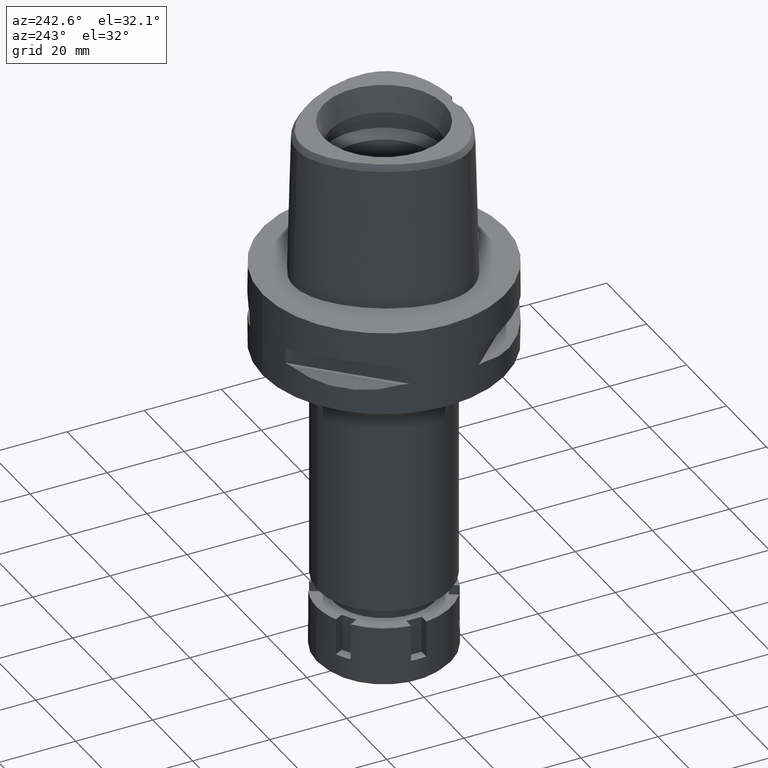
[diagram: clean part render]
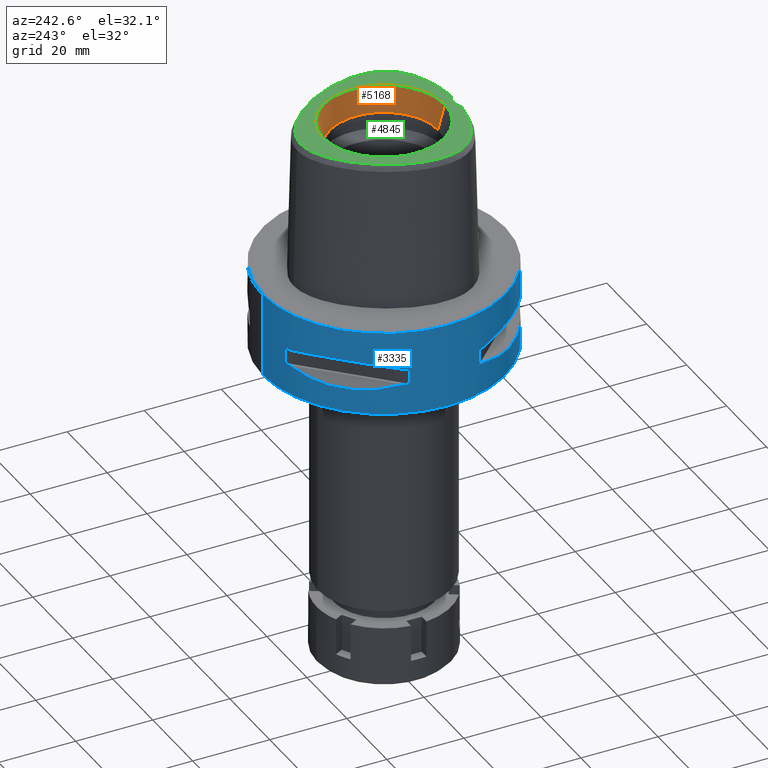
[diagram: same view with three faces highlighted in distinct colors, each labeled with its STEP entity id]
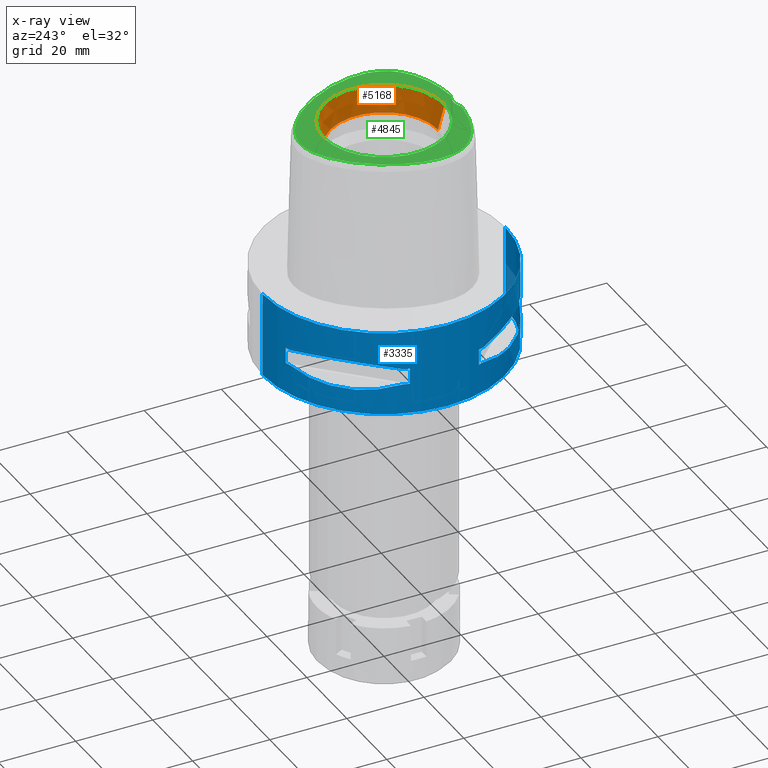
[diagram: x-ray of the same camera — body ghosted, the three highlighted faces saturated]
A machine part, auxiliary view with three faces highlighted in distinct colors.
The next image is the same camera in x-ray (body ghosted, the three faces saturated) — at least one of them is partly hidden behind the body in this view.
Their STEP definitions:

[orange] entity #5168 — the highlighted conical surface has half-angle 15 deg.
#83 = ORIENTED_EDGE ( 'NONE', *, *, #2092, .T. ) ;
#112 = DIRECTION ( 'NONE',  ( 0.0000000000000000000, -0.2588190451025869088, 0.9659258262890505486 ) ) ;
#210 = CARTESIAN_POINT ( 'NONE',  ( 0.0000000000000000000, 0.0000000000000000000, 34.79999999999999716 ) ) ;
#348 = VERTEX_POINT ( 'NONE', #3862 ) ;
#384 = CARTESIAN_POINT ( 'NONE',  ( 0.0000000000000000000, 14.00000000000000000, 31.60000000000000142 ) ) ;
#582 = EDGE_CURVE ( 'NONE', #2557, #4415, #711, .T. ) ;
#587 = DIRECTION ( 'NONE',  ( 0.0000000000000000000, 0.2588190451025869088, 0.9659258262890505486 ) ) ;
#711 = LINE ( 'NONE', #5382, #3611 ) ;
#737 = EDGE_CURVE ( 'NONE', #5273, #348, #4883, .T. ) ;
#802 = DIRECTION ( 'NONE',  ( 0.0000000000000000000, -1.000000000000000000, 0.0000000000000000000 ) ) ;
#1127 = ORIENTED_EDGE ( 'NONE', *, *, #582, .F. ) ;
#1608 = EDGE_CURVE ( 'NONE', #5273, #2557, #3349, .T. ) ;
#1768 = AXIS2_PLACEMENT_3D ( 'NONE', #2482, #3332, #802 ) ;
#1899 = FACE_OUTER_BOUND ( 'NONE', #2621, .T. ) ;
#2010 = ORIENTED_EDGE ( 'NONE', *, *, #1608, .F. ) ;
#2092 = EDGE_CURVE ( 'NONE', #348, #4415, #5353, .T. ) ;
#2170 = VECTOR ( 'NONE', #112, 1000.000000000000000 ) ;
#2482 = CARTESIAN_POINT ( 'NONE',  ( 0.0000000000000000000, 0.0000000000000000000, 38.00000000000000000 ) ) ;
#2490 = DIRECTION ( 'NONE',  ( 0.0000000000000000000, 0.0000000000000000000, 1.000000000000000000 ) ) ;
#2557 = VERTEX_POINT ( 'NONE', #384 ) ;
#2621 = EDGE_LOOP ( 'NONE', ( #1127, #2010, #4913, #83 ) ) ;
#2742 = DIRECTION ( 'NONE',  ( 0.0000000000000000000, 1.000000000000000000, 0.0000000000000000000 ) ) ;
#3161 = CARTESIAN_POINT ( 'NONE',  ( 0.0000000000000000000, -14.00000000000000000, 31.60000000000000142 ) ) ;
#3309 = DIRECTION ( 'NONE',  ( 0.0000000000000000000, 0.0000000000000000000, 1.000000000000000000 ) ) ;
#3332 = DIRECTION ( 'NONE',  ( 0.0000000000000000000, 0.0000000000000000000, 1.000000000000000000 ) ) ;
#3349 = CIRCLE ( 'NONE', #5037, 14.00000000000000000 ) ;
#3401 = AXIS2_PLACEMENT_3D ( 'NONE', #210, #3309, #2742 ) ;
#3611 = VECTOR ( 'NONE', #587, 1000.000000000000000 ) ;
#3862 = CARTESIAN_POINT ( 'NONE',  ( 0.0000000000000000000, -15.71487483155999776, 38.00000000000000000 ) ) ;
#4198 = CARTESIAN_POINT ( 'NONE',  ( 0.0000000000000000000, 15.71487483155999776, 38.00000000000000000 ) ) ;
#4415 = VERTEX_POINT ( 'NONE', #4198 ) ;
#4450 = CARTESIAN_POINT ( 'NONE',  ( 0.0000000000000000000, -14.00000000000000000, 31.60000000000000142 ) ) ;
#4572 = DIRECTION ( 'NONE',  ( 0.0000000000000000000, -1.000000000000000000, 0.0000000000000000000 ) ) ;
#4883 = LINE ( 'NONE', #3161, #2170 ) ;
#4913 = ORIENTED_EDGE ( 'NONE', *, *, #737, .T. ) ;
#4984 = CARTESIAN_POINT ( 'NONE',  ( 0.0000000000000000000, 0.0000000000000000000, 31.60000000000000142 ) ) ;
#5037 = AXIS2_PLACEMENT_3D ( 'NONE', #4984, #2490, #4572 ) ;
#5087 = CONICAL_SURFACE ( 'NONE', #3401, 14.85743741577999977, 0.2617993877991000029 ) ;
#5168 = ADVANCED_FACE ( 'NONE', ( #1899 ), #5087, .F. ) ;
#5273 = VERTEX_POINT ( 'NONE', #4450 ) ;
#5353 = CIRCLE ( 'NONE', #1768, 15.71487483155999776 ) ;
#5382 = CARTESIAN_POINT ( 'NONE',  ( 0.0000000000000000000, 14.00000000000000000, 31.60000000000000142 ) ) ;

[blue] entity #3335 — the highlighted cylindrical surface (partial cylindrical patch) has radius 31.5 mm, axis along (0, 0, -1).
#13 = ORIENTED_EDGE ( 'NONE', *, *, #4874, .F. ) ;
#24 = CARTESIAN_POINT ( 'NONE',  ( 0.0000000000000000000, 31.50000000000000000, 0.0000000000000000000 ) ) ;
#27 = CARTESIAN_POINT ( 'NONE',  ( -29.71690375017999841, 10.44775724750000023, -9.949999999998999201 ) ) ;
#46 = CIRCLE ( 'NONE', #3494, 31.50000000000000711 ) ;
#51 = CIRCLE ( 'NONE', #3237, 31.50000000000000000 ) ;
#55 = CARTESIAN_POINT ( 'NONE',  ( -30.19251670572000279, -8.981198972017999438, -14.05000000000000071 ) ) ;
#62 = VERTEX_POINT ( 'NONE', #1801 ) ;
#67 = EDGE_CURVE ( 'NONE', #1742, #1547, #2147, .T. ) ;
#99 = DIRECTION ( 'NONE',  ( -0.3316748332540863653, 0.9433937698468619626, 0.0000000000000000000 ) ) ;
#108 = CARTESIAN_POINT ( 'NONE',  ( -30.19251670572000279, 8.981198972019999616, -14.05000000000000071 ) ) ;
#117 = CARTESIAN_POINT ( 'NONE',  ( -25.43927894891607622, 18.59229662064853983, -15.62866126334269623 ) ) ;
#127 = AXIS2_PLACEMENT_3D ( 'NONE', #2538, #1652, #1627 ) ;
#140 = DIRECTION ( 'NONE',  ( -0.9584925938322735872, -0.2851174276831918153, 0.0000000000000000000 ) ) ;
#146 = CARTESIAN_POINT ( 'NONE',  ( -29.71690375017999841, 10.44775724750000023, -14.05000000000000071 ) ) ;
#233 = CARTESIAN_POINT ( 'NONE',  ( -16.89910283486545950, 26.58330558444438907, -15.40446471307224030 ) ) ;
#346 = FACE_BOUND ( 'NONE', #1789, .T. ) ;
#391 = CARTESIAN_POINT ( 'NONE',  ( -17.05047092244293694, -26.48642424310493837, -15.42670883407686588 ) ) ;
#426 = CARTESIAN_POINT ( 'NONE',  ( -10.44775724750000023, -29.71690375017999841, -9.949999999998999201 ) ) ;
#431 = CARTESIAN_POINT ( 'NONE',  ( -8.981198972017999438, -30.19251670572000279, -14.05000000000000071 ) ) ;
#453 = CARTESIAN_POINT ( 'NONE',  ( -10.44775724750000023, -29.71690375017999841, -14.05000000000000071 ) ) ;
#489 = CARTESIAN_POINT ( 'NONE',  ( -29.71690375017999841, -10.44775724750000023, -14.05000000000000071 ) ) ;
#517 = B_SPLINE_CURVE_WITH_KNOTS ( 'NONE', 3,
 ( #3252, #4950, #4418, #1096, #4009, #2827, #4532, #1461, #4444, #233, #4973, #1974, #3279, #546, #117, #4864, #2737, #3588, #5276, #5309, #1432, #1010, #570, #146 ),
 .UNSPECIFIED., .F., .F.,
 ( 4, 1, 1, 1, 1, 1, 2, 2, 2, 1, 1, 1, 1, 1, 2, 2, 4 ),
 ( 0.0000000000000000000, 0.1249999999999950040, 0.1874999999999924505, 0.2187499999999911737, 0.2343749999999902855, 0.2421874999999899802, 0.2460937499999900080, 0.2499999999999900080, 0.4999999999999917843, 0.6249999999999925615, 0.6874999999999925615, 0.7187499999999924505, 0.7343749999999926725, 0.7421874999999927836, 0.7460937499999928946, 0.7499999999999931166, 1.000000000000000000 ),
 .UNSPECIFIED. ) ;
#531 = DIRECTION ( 'NONE',  ( 0.0000000000000000000, 0.0000000000000000000, -1.000000000000000000 ) ) ;
#546 = CARTESIAN_POINT ( 'NONE',  ( -24.23018836745279714, 20.18579225685798306, -15.78559396978850415 ) ) ;
#565 = CARTESIAN_POINT ( 'NONE',  ( 0.0000000000000000000, 1.284042168905999827E-14, -9.950000000000001066 ) ) ;
#570 = CARTESIAN_POINT ( 'NONE',  ( -28.91382665368626093, 12.73197616788979047, -14.65467361754097197 ) ) ;
#638 = ORIENTED_EDGE ( 'NONE', *, *, #2160, .T. ) ;
#685 = VECTOR ( 'NONE', #2869, 1000.000000000000000 ) ;
#693 = DIRECTION ( 'NONE',  ( 0.0000000000000000000, 0.0000000000000000000, -1.000000000000000000 ) ) ;
#707 = CARTESIAN_POINT ( 'NONE',  ( -30.19251670572000279, 8.981198972017999438, -9.950000000000001066 ) ) ;
#801 = EDGE_CURVE ( 'NONE', #838, #5399, #3345, .T. ) ;
#838 = VERTEX_POINT ( 'NONE', #5436 ) ;
#864 = CARTESIAN_POINT ( 'NONE',  ( 0.0000000000000000000, 31.50000000000000000, 0.0000000000000000000 ) ) ;
#885 = CARTESIAN_POINT ( 'NONE',  ( -23.90617837150508507, -20.64154884324739214, -8.160627831297871282 ) ) ;
#923 = CARTESIAN_POINT ( 'NONE',  ( 0.0000000000000000000, -31.50000000000000000, 0.0000000000000000000 ) ) ;
#940 = EDGE_CURVE ( 'NONE', #5399, #2936, #4465, .T. ) ;
#975 = CARTESIAN_POINT ( 'NONE',  ( -8.981198972017999438, -30.19251670572000279, -9.950000000000001066 ) ) ;
#1008 = DIRECTION ( 'NONE',  ( -0.2851174276831918153, -0.9584925938322735872, 0.0000000000000000000 ) ) ;
#1010 = CARTESIAN_POINT ( 'NONE',  ( -27.86285265926284893, 14.89252659058025685, -15.10765629752004813 ) ) ;
#1056 = AXIS2_PLACEMENT_3D ( 'NONE', #2885, #693, #4148 ) ;
#1090 = DIRECTION ( 'NONE',  ( 0.0000000000000000000, 1.000000000000000000, 0.0000000000000000000 ) ) ;
#1096 = CARTESIAN_POINT ( 'NONE',  ( -15.11986997308662595, 27.64634172018752523, -15.11207862403231239 ) ) ;
#1103 = VERTEX_POINT ( 'NONE', #108 ) ;
#1124 = CARTESIAN_POINT ( 'NONE',  ( -20.64154884331406237, 23.90617837143844682, -8.160627831321418668 ) ) ;
#1125 = DIRECTION ( 'NONE',  ( 0.0000000000000000000, -1.000000000000000000, 0.0000000000000000000 ) ) ;
#1179 = CARTESIAN_POINT ( 'NONE',  ( -18.59229662065495958, -25.43927894891979946, -15.62866126334684580 ) ) ;
#1182 = CARTESIAN_POINT ( 'NONE',  ( 0.0000000000000000000, 1.284042168905999827E-14, 4.850000000000000533 ) ) ;
#1205 = CARTESIAN_POINT ( 'NONE',  ( -27.88214534467230976, -14.84422749205291581, -8.906206096480271839 ) ) ;
#1209 = ORIENTED_EDGE ( 'NONE', *, *, #3507, .F. ) ;
#1216 = ORIENTED_EDGE ( 'NONE', *, *, #940, .T. ) ;
#1234 = CARTESIAN_POINT ( 'NONE',  ( -29.31542262584746794, -11.58970337494326941, -14.35229357166913999 ) ) ;
#1326 = CIRCLE ( 'NONE', #3684, 31.50000000000000711 ) ;
#1359 = DIRECTION ( 'NONE',  ( 0.0000000000000000000, 0.0000000000000000000, -1.000000000000000000 ) ) ;
#1430 = CARTESIAN_POINT ( 'NONE',  ( 0.0000000000000000000, 1.284042168905999827E-14, -14.05000000000000071 ) ) ;
#1432 = CARTESIAN_POINT ( 'NONE',  ( -26.54368690921649687, 16.96123479564916892, -15.41365572341313239 ) ) ;
#1461 = CARTESIAN_POINT ( 'NONE',  ( -16.80193241490443157, 26.64486562695815053, -15.38992683735661515 ) ) ;
#1547 = VERTEX_POINT ( 'NONE', #3824 ) ;
#1560 = CARTESIAN_POINT ( 'NONE',  ( -30.19251670572000279, 8.981198972017999438, -14.05000000000000071 ) ) ;
#1571 = CARTESIAN_POINT ( 'NONE',  ( -26.64486562695783789, -16.80193241490531975, -15.38992683735687272 ) ) ;
#1577 = ORIENTED_EDGE ( 'NONE', *, *, #3372, .T. ) ;
#1600 = CARTESIAN_POINT ( 'NONE',  ( -23.89673728055121416, -20.65093790435243193, -15.83935804901394739 ) ) ;
#1613 = ORIENTED_EDGE ( 'NONE', *, *, #3282, .F. ) ;
#1627 = DIRECTION ( 'NONE',  ( -0.9433937698468619626, -0.3316748332540863653, 0.0000000000000000000 ) ) ;
#1652 = DIRECTION ( 'NONE',  ( 0.0000000000000000000, 0.0000000000000000000, -1.000000000000000000 ) ) ;
#1677 = CARTESIAN_POINT ( 'NONE',  ( -14.89252659053665440, -27.86285265927818600, -15.10765629750852135 ) ) ;
#1706 = CARTESIAN_POINT ( 'NONE',  ( -17.76952662672209371, -26.01217882834868433, -15.52665221626257264 ) ) ;
#1717 = DIRECTION ( 'NONE',  ( 0.0000000000000000000, 0.0000000000000000000, -1.000000000000000000 ) ) ;
#1725 = ORIENTED_EDGE ( 'NONE', *, *, #2034, .T. ) ;
#1742 = VERTEX_POINT ( 'NONE', #923 ) ;
#1758 = VERTEX_POINT ( 'NONE', #489 ) ;
#1771 = ORIENTED_EDGE ( 'NONE', *, *, #4562, .F. ) ;
#1780 = VECTOR ( 'NONE', #4311, 1000.000000000000000 ) ;
#1789 = EDGE_LOOP ( 'NONE', ( #1725, #13, #4025, #1613, #2970, #1209, #4058, #638 ) ) ;
#1801 = CARTESIAN_POINT ( 'NONE',  ( -8.981198972019999616, -30.19251670572000279, -14.05000000000000071 ) ) ;
#1813 = DIRECTION ( 'NONE',  ( -0.9584925938322735872, 0.2851174276831918153, 0.0000000000000000000 ) ) ;
#1827 = ORIENTED_EDGE ( 'NONE', *, *, #2990, .T. ) ;
#1831 = DIRECTION ( 'NONE',  ( 0.0000000000000000000, 0.0000000000000000000, 1.000000000000000000 ) ) ;
#1844 = B_SPLINE_CURVE_WITH_KNOTS ( 'NONE', 3,
 ( #5076, #1234, #2001, #2481, #5413, #3299, #2957, #1571, #4994, #2029, #3753, #1600, #3331, #5025, #1179, #1706, #3945, #2673, #391, #2647, #3921, #1677, #3463, #453 ),
 .UNSPECIFIED., .F., .F.,
 ( 4, 1, 1, 1, 1, 1, 2, 2, 2, 1, 1, 1, 1, 1, 2, 2, 4 ),
 ( 0.0000000000000000000, 0.1250000000000055511, 0.1875000000000083267, 0.2187500000000097977, 0.2343750000000106304, 0.2421875000000108247, 0.2460937500000108524, 0.2500000000000108802, 0.5000000000000087708, 0.6250000000000075495, 0.6875000000000071054, 0.7187500000000067724, 0.7343750000000066613, 0.7421875000000065503, 0.7460937500000062172, 0.7500000000000059952, 1.000000000000000000 ),
 .UNSPECIFIED. ) ;
#1857 = VERTEX_POINT ( 'NONE', #1921 ) ;
#1863 = CIRCLE ( 'NONE', #127, 31.50000000000000711 ) ;
#1894 = ORIENTED_EDGE ( 'NONE', *, *, #67, .F. ) ;
#1921 = CARTESIAN_POINT ( 'NONE',  ( -10.44775724750000023, 29.71690375017999841, -9.949999999998999201 ) ) ;
#1974 = CARTESIAN_POINT ( 'NONE',  ( -20.65093790435807364, 23.89673728056094859, -15.83935804902020550 ) ) ;
#2001 = CARTESIAN_POINT ( 'NONE',  ( -28.62019653468943048, -13.25636937903484203, -14.74888225541266884 ) ) ;
#2029 = CARTESIAN_POINT ( 'NONE',  ( -26.58330558444411906, -16.89910283486596754, -15.40446471307235754 ) ) ;
#2034 = EDGE_CURVE ( 'NONE', #5473, #4069, #3315, .T. ) ;
#2062 = CARTESIAN_POINT ( 'NONE',  ( -14.84422749192772883, 27.88214534473898354, -8.906206096515608905 ) ) ;
#2068 = EDGE_CURVE ( 'NONE', #62, #5222, #3038, .T. ) ;
#2112 = CARTESIAN_POINT ( 'NONE',  ( 0.0000000000000000000, 1.284042168905999827E-14, -9.950000000000001066 ) ) ;
#2147 = LINE ( 'NONE', #5220, #4327 ) ;
#2150 = VERTEX_POINT ( 'NONE', #3755 ) ;
#2160 = EDGE_CURVE ( 'NONE', #1857, #5473, #2904, .T. ) ;
#2176 = ORIENTED_EDGE ( 'NONE', *, *, #4491, .T. ) ;
#2203 = DIRECTION ( 'NONE',  ( 0.0000000000000000000, 0.0000000000000000000, 1.000000000000000000 ) ) ;
#2324 = VECTOR ( 'NONE', #3668, 1000.000000000000000 ) ;
#2353 = VERTEX_POINT ( 'NONE', #5344 ) ;
#2361 = VERTEX_POINT ( 'NONE', #5380 ) ;
#2373 = EDGE_LOOP ( 'NONE', ( #2519, #1894, #1577, #5393 ) ) ;
#2481 = CARTESIAN_POINT ( 'NONE',  ( -27.64634172018421410, -15.11986997309601577, -15.11207862403482238 ) ) ;
#2519 = ORIENTED_EDGE ( 'NONE', *, *, #3793, .T. ) ;
#2538 = CARTESIAN_POINT ( 'NONE',  ( 0.0000000000000000000, 1.284042168905999827E-14, -14.05000000000000071 ) ) ;
#2625 = DIRECTION ( 'NONE',  ( 0.0000000000000000000, 0.0000000000000000000, -1.000000000000000000 ) ) ;
#2647 = CARTESIAN_POINT ( 'NONE',  ( -16.98999780422095540, -26.52527364208602734, -15.41788098766330783 ) ) ;
#2669 = EDGE_CURVE ( 'NONE', #2150, #4379, #46, .T. ) ;
#2673 = CARTESIAN_POINT ( 'NONE',  ( -17.14106442934810204, -26.42800887047570058, -15.43984550238532982 ) ) ;
#2737 = CARTESIAN_POINT ( 'NONE',  ( -26.29071741523646111, 17.35163608579689409, -15.46976201925398087 ) ) ;
#2827 = CARTESIAN_POINT ( 'NONE',  ( -16.48208282228564769, 26.84474411198887012, -15.34094883777873619 ) ) ;
#2869 = DIRECTION ( 'NONE',  ( 0.0000000000000000000, 0.0000000000000000000, 1.000000000000000000 ) ) ;
#2871 = VECTOR ( 'NONE', #2625, 1000.000000000000000 ) ;
#2885 = CARTESIAN_POINT ( 'NONE',  ( 0.0000000000000000000, 1.284042168905999827E-14, 0.0000000000000000000 ) ) ;
#2898 = LINE ( 'NONE', #1560, #685 ) ;
#2904 = B_SPLINE_CURVE_WITH_KNOTS ( 'NONE', 3,
 ( #2960, #2909, #2062, #5439, #1124, #2931, #5026, #4146, #3302, #5470 ),
 .UNSPECIFIED., .F., .F.,
 ( 4, 2, 2, 2, 4 ),
 ( 0.0000000000000000000, 0.2500000000000000000, 0.5000000000000000000, 0.7500000000000000000, 1.000000000000000000 ),
 .UNSPECIFIED. ) ;
#2909 = CARTESIAN_POINT ( 'NONE',  ( -12.70092055726457225, 28.92474506846247451, -9.353547358238497367 ) ) ;
#2929 = CARTESIAN_POINT ( 'NONE',  ( -14.84430321572443034, -27.88210502987327288, -8.906184731984685854 ) ) ;
#2931 = CARTESIAN_POINT ( 'NONE',  ( -23.90617837143843971, 20.64154884331406237, -8.160613588453221823 ) ) ;
#2936 = VERTEX_POINT ( 'NONE', #5480 ) ;
#2957 = CARTESIAN_POINT ( 'NONE',  ( -26.70521063584532229, -16.70616724745790549, -15.37546661817682292 ) ) ;
#2960 = CARTESIAN_POINT ( 'NONE',  ( -10.44775724750000023, 29.71690375017999841, -9.949999999998999201 ) ) ;
#2970 = ORIENTED_EDGE ( 'NONE', *, *, #2669, .T. ) ;
#2990 = EDGE_CURVE ( 'NONE', #2936, #3881, #1326, .T. ) ;
#3038 = CIRCLE ( 'NONE', #3488, 31.50000000000001776 ) ;
#3072 = CARTESIAN_POINT ( 'NONE',  ( -8.981198972017999438, 30.19251670572000279, -9.950000000000001066 ) ) ;
#3119 = VERTEX_POINT ( 'NONE', #864 ) ;
#3201 = CARTESIAN_POINT ( 'NONE',  ( -10.44775724750000023, -29.71690375017999841, -14.05000000000000071 ) ) ;
#3205 = EDGE_CURVE ( 'NONE', #838, #5422, #4473, .T. ) ;
#3237 = AXIS2_PLACEMENT_3D ( 'NONE', #4908, #3577, #1090 ) ;
#3252 = CARTESIAN_POINT ( 'NONE',  ( -10.44775724750000023, 29.71690375017999841, -14.05000000000000071 ) ) ;
#3263 = ORIENTED_EDGE ( 'NONE', *, *, #3205, .F. ) ;
#3279 = CARTESIAN_POINT ( 'NONE',  ( -23.08532645888017854, 21.46242677077873751, -15.83938991065184076 ) ) ;
#3282 = EDGE_CURVE ( 'NONE', #2150, #5196, #517, .T. ) ;
#3299 = CARTESIAN_POINT ( 'NONE',  ( -26.84474411198783628, -16.48208282228858224, -15.34094883777952667 ) ) ;
#3302 = CARTESIAN_POINT ( 'NONE',  ( -28.92472615203844910, 12.70097436187914575, -9.353533115194341718 ) ) ;
#3315 = CIRCLE ( 'NONE', #4295, 31.50000000000000711 ) ;
#3331 = CARTESIAN_POINT ( 'NONE',  ( -21.46242677078364025, -23.08532645888299939, -15.83938991065501867 ) ) ;
#3335 = ADVANCED_FACE ( 'NONE', ( #4230, #346, #3415 ), #5522, .T. ) ;
#3345 = CIRCLE ( 'NONE', #4686, 31.50000000000001776 ) ;
#3354 = CARTESIAN_POINT ( 'NONE',  ( -29.71690375017999841, -10.44775724750000023, -9.949999999998999201 ) ) ;
#3372 = EDGE_CURVE ( 'NONE', #1742, #3119, #4390, .T. ) ;
#3415 = FACE_BOUND ( 'NONE', #4344, .T. ) ;
#3438 = CARTESIAN_POINT ( 'NONE',  ( -12.70097436179016981, -28.92472615206970588, -9.353533115217881999 ) ) ;
#3450 = CARTESIAN_POINT ( 'NONE',  ( 0.0000000000000000000, 1.284042168905999827E-14, -9.950000000000001066 ) ) ;
#3463 = CARTESIAN_POINT ( 'NONE',  ( -12.73197616784617381, -28.91382665370159799, -14.65467361752943809 ) ) ;
#3477 = EDGE_CURVE ( 'NONE', #2361, #1857, #5364, .T. ) ;
#3488 = AXIS2_PLACEMENT_3D ( 'NONE', #1430, #4862, #1008 ) ;
#3494 = AXIS2_PLACEMENT_3D ( 'NONE', #4765, #1359, #99 ) ;
#3495 = DIRECTION ( 'NONE',  ( 0.0000000000000000000, 0.0000000000000000000, -1.000000000000000000 ) ) ;
#3507 = EDGE_CURVE ( 'NONE', #2361, #4379, #4721, .T. ) ;
#3559 = DIRECTION ( 'NONE',  ( -0.9433937698468619626, 0.3316748332540863653, 0.0000000000000000000 ) ) ;
#3562 = EDGE_CURVE ( 'NONE', #62, #3881, #4779, .T. ) ;
#3577 = DIRECTION ( 'NONE',  ( 0.0000000000000000000, 0.0000000000000000000, 1.000000000000000000 ) ) ;
#3588 = CARTESIAN_POINT ( 'NONE',  ( -26.42800887047508240, 17.14106442934706820, -15.43984550238465836 ) ) ;
#3602 = CARTESIAN_POINT ( 'NONE',  ( 0.0000000000000000000, 1.284042168905999827E-14, -14.05000000000000071 ) ) ;
#3625 = CARTESIAN_POINT ( 'NONE',  ( -29.71690375017999841, 10.44775724750000023, -14.05000000000000071 ) ) ;
#3668 = DIRECTION ( 'NONE',  ( 0.0000000000000000000, 0.0000000000000000000, -1.000000000000000000 ) ) ;
#3684 = AXIS2_PLACEMENT_3D ( 'NONE', #3450, #2203, #4346 ) ;
#3710 = ORIENTED_EDGE ( 'NONE', *, *, #801, .T. ) ;
#3753 = CARTESIAN_POINT ( 'NONE',  ( -25.32725744469575702, -18.86897208070564247, -15.69588095933118943 ) ) ;
#3755 = CARTESIAN_POINT ( 'NONE',  ( -10.44775724750000023, 29.71690375017999841, -14.05000000000000071 ) ) ;
#3793 = EDGE_CURVE ( 'NONE', #2353, #1547, #51, .T. ) ;
#3824 = CARTESIAN_POINT ( 'NONE',  ( 0.0000000000000000000, -31.50000000000000000, -22.00000000000000000 ) ) ;
#3841 = DIRECTION ( 'NONE',  ( 0.0000000000000000000, 0.0000000000000000000, 1.000000000000000000 ) ) ;
#3865 = AXIS2_PLACEMENT_3D ( 'NONE', #2112, #3841, #4175 ) ;
#3881 = VERTEX_POINT ( 'NONE', #975 ) ;
#3902 = EDGE_CURVE ( 'NONE', #1103, #5196, #4556, .T. ) ;
#3921 = CARTESIAN_POINT ( 'NONE',  ( -16.96123479564984748, -26.54368690921626950, -15.41365572341332424 ) ) ;
#3945 = CARTESIAN_POINT ( 'NONE',  ( -17.35163608579889072, -26.29071741523761929, -15.46976201925527761 ) ) ;
#3946 = CARTESIAN_POINT ( 'NONE',  ( -29.71690375017999841, -10.44775724750000023, -9.949999999998999201 ) ) ;
#4009 = CARTESIAN_POINT ( 'NONE',  ( -16.03138450077636534, 27.11872488589498786, -15.26880420107476333 ) ) ;
#4025 = ORIENTED_EDGE ( 'NONE', *, *, #3902, .T. ) ;
#4029 = DIRECTION ( 'NONE',  ( 0.0000000000000000000, 0.0000000000000000000, 1.000000000000000000 ) ) ;
#4058 = ORIENTED_EDGE ( 'NONE', *, *, #3477, .T. ) ;
#4069 = VERTEX_POINT ( 'NONE', #707 ) ;
#4146 = CARTESIAN_POINT ( 'NONE',  ( -27.88210502980663819, 14.84430321584963330, -8.906184731949368327 ) ) ;
#4148 = DIRECTION ( 'NONE',  ( 0.0000000000000000000, -1.000000000000000000, 0.0000000000000000000 ) ) ;
#4175 = DIRECTION ( 'NONE',  ( -0.2851174276831918153, 0.9584925938322735872, 0.0000000000000000000 ) ) ;
#4219 = AXIS2_PLACEMENT_3D ( 'NONE', #1182, #4620, #1125 ) ;
#4230 = FACE_OUTER_BOUND ( 'NONE', #2373, .T. ) ;
#4251 = CARTESIAN_POINT ( 'NONE',  ( -20.64154884324739214, -23.90617837150508507, -8.160613588476767433 ) ) ;
#4275 = CARTESIAN_POINT ( 'NONE',  ( -25.37277178164059777, -18.81455742168903456, -8.309746333109711003 ) ) ;
#4292 = AXIS2_PLACEMENT_3D ( 'NONE', #3602, #531, #1813 ) ;
#4295 = AXIS2_PLACEMENT_3D ( 'NONE', #4536, #1831, #3559 ) ;
#4311 = DIRECTION ( 'NONE',  ( 0.0000000000000000000, 0.0000000000000000000, 1.000000000000000000 ) ) ;
#4327 = VECTOR ( 'NONE', #1717, 1000.000000000000000 ) ;
#4344 = EDGE_LOOP ( 'NONE', ( #1827, #5033, #5136, #1771, #2176, #3263, #3710, #1216 ) ) ;
#4346 = DIRECTION ( 'NONE',  ( -0.3316748332540863653, -0.9433937698468619626, 0.0000000000000000000 ) ) ;
#4379 = VERTEX_POINT ( 'NONE', #4553 ) ;
#4390 = CIRCLE ( 'NONE', #1056, 31.50000000000000000 ) ;
#4418 = CARTESIAN_POINT ( 'NONE',  ( -13.25636937902232404, 28.62019653469382163, -14.74888225540932751 ) ) ;
#4444 = CARTESIAN_POINT ( 'NONE',  ( -16.86571563436579169, 26.60451452154777030, -15.39949295785988426 ) ) ;
#4465 = B_SPLINE_CURVE_WITH_KNOTS ( 'NONE', 3,
 ( #3354, #5105, #1205, #4275, #885, #4251, #4717, #2929, #3438, #426 ),
 .UNSPECIFIED., .F., .F.,
 ( 4, 2, 2, 2, 4 ),
 ( 0.0000000000000000000, 0.2499999999999999445, 0.4999999999999998890, 0.7499999999999997780, 1.000000000000000000 ),
 .UNSPECIFIED. ) ;
#4473 = LINE ( 'NONE', #4503, #2324 ) ;
#4477 = VECTOR ( 'NONE', #3495, 1000.000000000000000 ) ;
#4491 = EDGE_CURVE ( 'NONE', #1758, #5422, #1863, .T. ) ;
#4503 = CARTESIAN_POINT ( 'NONE',  ( -30.19251670572000279, -8.981198972017999438, -9.950000000000001066 ) ) ;
#4532 = CARTESIAN_POINT ( 'NONE',  ( -16.70616724745637072, 26.70521063584585164, -15.37546661817639126 ) ) ;
#4536 = CARTESIAN_POINT ( 'NONE',  ( 0.0000000000000000000, 1.284042168905999827E-14, -9.950000000000001066 ) ) ;
#4553 = CARTESIAN_POINT ( 'NONE',  ( -8.981198972017999438, 30.19251670572000279, -14.05000000000000071 ) ) ;
#4556 = CIRCLE ( 'NONE', #4292, 31.50000000000001776 ) ;
#4562 = EDGE_CURVE ( 'NONE', #1758, #5222, #1844, .T. ) ;
#4611 = EDGE_CURVE ( 'NONE', #3119, #2353, #5156, .T. ) ;
#4620 = DIRECTION ( 'NONE',  ( 0.0000000000000000000, 0.0000000000000000000, -1.000000000000000000 ) ) ;
#4686 = AXIS2_PLACEMENT_3D ( 'NONE', #565, #4029, #140 ) ;
#4717 = CARTESIAN_POINT ( 'NONE',  ( -18.81462633026353970, -25.37272068403001413, -8.309724968614126794 ) ) ;
#4721 = LINE ( 'NONE', #3072, #4477 ) ;
#4765 = CARTESIAN_POINT ( 'NONE',  ( 0.0000000000000000000, 1.284042168905999827E-14, -14.05000000000000071 ) ) ;
#4779 = LINE ( 'NONE', #431, #1780 ) ;
#4862 = DIRECTION ( 'NONE',  ( 0.0000000000000000000, 0.0000000000000000000, -1.000000000000000000 ) ) ;
#4864 = CARTESIAN_POINT ( 'NONE',  ( -26.01217882834653139, 17.76952662671834915, -15.52665221626015501 ) ) ;
#4874 = EDGE_CURVE ( 'NONE', #1103, #4069, #2898, .T. ) ;
#4908 = CARTESIAN_POINT ( 'NONE',  ( 0.0000000000000000000, 1.284042168905999827E-14, -22.00000000000000000 ) ) ;
#4950 = CARTESIAN_POINT ( 'NONE',  ( -11.58970337493613378, 29.31542262584994418, -14.35229357166721265 ) ) ;
#4973 = CARTESIAN_POINT ( 'NONE',  ( -18.86897208073744991, 25.32725744467937545, -15.69588095933747240 ) ) ;
#4994 = CARTESIAN_POINT ( 'NONE',  ( -26.60451452154760332, -16.86571563436626064, -15.39949295786003347 ) ) ;
#5025 = CARTESIAN_POINT ( 'NONE',  ( -20.18579225686653444, -24.23018836745773541, -15.78559396979401974 ) ) ;
#5026 = CARTESIAN_POINT ( 'NONE',  ( -25.37272068394556257, 18.81462633037747167, -8.309724968578809268 ) ) ;
#5033 = ORIENTED_EDGE ( 'NONE', *, *, #3562, .F. ) ;
#5076 = CARTESIAN_POINT ( 'NONE',  ( -29.71690375017999841, -10.44775724750000023, -14.05000000000000071 ) ) ;
#5105 = CARTESIAN_POINT ( 'NONE',  ( -28.92474506843119286, -12.70092055735351266, -9.353547358214942875 ) ) ;
#5136 = ORIENTED_EDGE ( 'NONE', *, *, #2068, .T. ) ;
#5156 = LINE ( 'NONE', #24, #2871 ) ;
#5196 = VERTEX_POINT ( 'NONE', #3625 ) ;
#5220 = CARTESIAN_POINT ( 'NONE',  ( 0.0000000000000000000, -31.50000000000000000, 0.0000000000000000000 ) ) ;
#5222 = VERTEX_POINT ( 'NONE', #3201 ) ;
#5276 = CARTESIAN_POINT ( 'NONE',  ( -26.48642424310458665, 17.05047092244234008, -15.42670883407647509 ) ) ;
#5309 = CARTESIAN_POINT ( 'NONE',  ( -26.52527364208584615, 16.98999780422065342, -15.41788098766309467 ) ) ;
#5344 = CARTESIAN_POINT ( 'NONE',  ( 0.0000000000000000000, 31.50000000000000000, -22.00000000000000000 ) ) ;
#5364 = CIRCLE ( 'NONE', #3865, 31.50000000000001776 ) ;
#5380 = CARTESIAN_POINT ( 'NONE',  ( -8.981198972019999616, 30.19251670572000279, -9.950000000000001066 ) ) ;
#5393 = ORIENTED_EDGE ( 'NONE', *, *, #4611, .T. ) ;
#5399 = VERTEX_POINT ( 'NONE', #3946 ) ;
#5413 = CARTESIAN_POINT ( 'NONE',  ( -27.11872488589304453, -16.03138450078185429, -15.26880420107623237 ) ) ;
#5422 = VERTEX_POINT ( 'NONE', #55 ) ;
#5436 = CARTESIAN_POINT ( 'NONE',  ( -30.19251670572000279, -8.981198972019999616, -9.950000000000001066 ) ) ;
#5439 = CARTESIAN_POINT ( 'NONE',  ( -18.81455742157509903, 25.37277178172508840, -8.309746333145048069 ) ) ;
#5470 = CARTESIAN_POINT ( 'NONE',  ( -29.71690375017999841, 10.44775724750000023, -9.949999999998999201 ) ) ;
#5473 = VERTEX_POINT ( 'NONE', #27 ) ;
#5480 = CARTESIAN_POINT ( 'NONE',  ( -10.44775724750000023, -29.71690375017999841, -9.949999999998999201 ) ) ;
#5522 = CYLINDRICAL_SURFACE ( 'NONE', #4219, 31.50000000000000000 ) ;

[green] entity #4845 — the highlighted planar face has unit normal (0, 0, 1).
#21 = CARTESIAN_POINT ( 'NONE',  ( 5.894487344450387134, 20.13186406532343753, 37.99999999999565148 ) ) ;
#48 = CARTESIAN_POINT ( 'NONE',  ( 19.54993126781906909, -9.226212439885376426, 38.00000000000051870 ) ) ;
#60 = ORIENTED_EDGE ( 'NONE', *, *, #530, .F. ) ;
#81 = CARTESIAN_POINT ( 'NONE',  ( 20.38292172607859953, -3.276278498261098182, 37.99999999999266720 ) ) ;
#130 = CARTESIAN_POINT ( 'NONE',  ( 20.36412151360978839, -5.276385427453520016, 38.00000000000137135 ) ) ;
#172 = VERTEX_POINT ( 'NONE', #1460 ) ;
#197 = CARTESIAN_POINT ( 'NONE',  ( -17.60426951086681413, 7.098774535281042297, 38.00000000000002842 ) ) ;
#216 = PLANE ( 'NONE',  #3134 ) ;
#227 = CARTESIAN_POINT ( 'NONE',  ( -7.655222869371622885, 19.09452359226458285, 37.99999999999694467 ) ) ;
#264 = VERTEX_POINT ( 'NONE', #5329 ) ;
#315 = CARTESIAN_POINT ( 'NONE',  ( -20.16012968311774500, -1.009698174524371383, 38.00000000000088107 ) ) ;
#348 = VERTEX_POINT ( 'NONE', #3862 ) ;
#353 = ORIENTED_EDGE ( 'NONE', *, *, #1997, .F. ) ;
#390 = CARTESIAN_POINT ( 'NONE',  ( -6.759433772717140521, 19.65454812513344152, 37.99999999999344880 ) ) ;
#403 = DIRECTION ( 'NONE',  ( 0.0000000000000000000, 0.0000000000000000000, 1.000000000000000000 ) ) ;
#450 = CARTESIAN_POINT ( 'NONE',  ( 16.36283630828052438, -13.76236604535423425, 37.99999999999782574 ) ) ;
#471 = CARTESIAN_POINT ( 'NONE',  ( 20.30478359881294281, -2.175347700950774232, 37.99999999999825206 ) ) ;
#503 = CARTESIAN_POINT ( 'NONE',  ( 10.17751632997979172, -17.24426134458915172, 37.99999999999407407 ) ) ;
#530 = EDGE_CURVE ( 'NONE', #264, #1310, #1186, .T. ) ;
#535 = CARTESIAN_POINT ( 'NONE',  ( 18.99619228226586998, -10.46780014453669061, 37.99999999999445777 ) ) ;
#561 = CARTESIAN_POINT ( 'NONE',  ( 11.46587147800191886, 15.92717600803210765, 38.00000000000034817 ) ) ;
#572 = CARTESIAN_POINT ( 'NONE',  ( 0.0000000000000000000, 0.0000000000000000000, 38.00000000000000000 ) ) ;
#629 = CARTESIAN_POINT ( 'NONE',  ( -18.79649882725014010, 4.256255933890983556, 37.99999999999428724 ) ) ;
#687 = CARTESIAN_POINT ( 'NONE',  ( -20.36398648679625722, -5.278470727085149861, 38.00000000000147082 ) ) ;
#743 = CARTESIAN_POINT ( 'NONE',  ( 2.018320379028144096, 21.50256508435978731, 37.99999999999518252 ) ) ;
#745 = CARTESIAN_POINT ( 'NONE',  ( -19.98419490692120704, -7.809898894995577656, 38.00000000000395062 ) ) ;
#774 = AXIS2_PLACEMENT_3D ( 'NONE', #572, #2308, #2259 ) ;
#802 = DIRECTION ( 'NONE',  ( 0.0000000000000000000, -1.000000000000000000, 0.0000000000000000000 ) ) ;
#883 = CARTESIAN_POINT ( 'NONE',  ( 20.40062138795126501, -4.309334958867775178, 37.99999999999833022 ) ) ;
#907 = EDGE_CURVE ( 'NONE', #172, #264, #3003, .T. ) ;
#910 = CARTESIAN_POINT ( 'NONE',  ( 20.27923816685849800, -6.179850483267850692, 38.00000000000648015 ) ) ;
#932 = CARTESIAN_POINT ( 'NONE',  ( 12.37622418509453048, -16.33871033285954155, 37.99999999999644729 ) ) ;
#966 = CARTESIAN_POINT ( 'NONE',  ( 20.15127154947216681, -7.022178451341024363, 38.00000000000400746 ) ) ;
#982 = CARTESIAN_POINT ( 'NONE',  ( 0.0000000000000000000, -23.00000000000000000, 38.00000000000000000 ) ) ;
#1000 = CARTESIAN_POINT ( 'NONE',  ( 6.760281394351055795, 19.65404668909480534, 37.99999999999227640 ) ) ;
#1058 = CARTESIAN_POINT ( 'NONE',  ( -7.599370508970219262, -18.01010694911127530, 38.00000000000416378 ) ) ;
#1092 = CARTESIAN_POINT ( 'NONE',  ( -19.26324493738939125, 2.868570891456882599, 38.00000000000267164 ) ) ;
#1120 = CARTESIAN_POINT ( 'NONE',  ( -18.31748213707045636, -11.58791794387357754, 37.99999999999749889 ) ) ;
#1178 = CARTESIAN_POINT ( 'NONE',  ( -18.99520880204055473, -10.46968343925917644, 38.00000000000446221 ) ) ;
#1186 = B_SPLINE_CURVE_WITH_KNOTS ( 'NONE', 3,
 ( #2131, #1702, #4301, #4613, #743, #4223, #2643, #2191, #1339, #21, #1000, #1757, #3036, #3093, #5152, #561, #2295, #2701, #4405, #4743, #4795, #3546, #1308, #3917, #5262, #3485, #5180, #3155, #4023, #471, #81, #883, #130, #910, #966, #4433, #2620, #48, #4820, #535, #4773, #1878, #4355, #2270, #4335, #450, #1788, #3064, #1365, #3517, #932, #2216, #503, #5236, #2668, #3940, #3999, #2246, #1818, #5211 ),
 .UNSPECIFIED., .F., .F.,
 ( 4, 1, 1, 1, 1, 1, 1, 1, 1, 1, 1, 1, 1, 1, 1, 1, 1, 1, 1, 1, 1, 1, 1, 1, 1, 1, 1, 1, 1, 1, 1, 1, 1, 1, 1, 1, 1, 1, 1, 1, 1, 1, 1, 1, 1, 1, 1, 1, 1, 1, 1, 1, 1, 1, 1, 1, 1, 4 ),
 ( 0.0000000000000000000, 0.01775854187129999318, 0.03551708374169992855, 0.05327562561200005486, 0.07103416748239999023, 0.08879270935270000553, 0.1065512512231000519, 0.1243097930933999562, 0.1420683349638000026, 0.1598268768341000179, 0.1775854187044000332, 0.1953439605747999686, 0.2131025024450999839, 0.2308610443155000302, 0.2486195861857999345, 0.2663781280563000120, 0.2841366699266000273, 0.3018952117970000737, 0.3196537536672999780, 0.3374122955377000244, 0.3551708374080000397, 0.3729293792782999439, 0.3906879211486999903, 0.4084464630190000056, 0.4262050048894000520, 0.4439635467596999563, 0.4617220886301000027, 0.4794806305004000180, 0.4972391723707999533, 0.5149977142410999686, 0.5327562561113999839, 0.5505147979818000303, 0.5682733398521000456, 0.5860318817224999810, 0.6037904235927999963, 0.6215489654632000427, 0.6393075073334999470, 0.6570660492038999934, 0.6748245910742000087, 0.6925831329445000240, 0.7103416748149000703, 0.7281002166851999746, 0.7458587585556000210, 0.7636173004259000363, 0.7813758422962999717, 0.7991343841665999870, 0.8168929260370000334, 0.8346514679073000487, 0.8524100097776999840, 0.8701685516479999993, 0.8879270935183000146, 0.9056856353886799660, 0.9234441772589799813, 0.9412027191293600437, 0.9589612609997000270, 0.9767198028700500023, 0.9944783447403919840, 1.000000000000000000 ),
 .UNSPECIFIED. ) ;
#1308 = CARTESIAN_POINT ( 'NONE',  ( 17.60373714028159853, 7.099883643192407945, 37.99999999999548095 ) ) ;
#1310 = VERTEX_POINT ( 'NONE', #1531 ) ;
#1339 = CARTESIAN_POINT ( 'NONE',  ( 5.059249257020304924, 20.53399274679572883, 37.99999999999438671 ) ) ;
#1352 = EDGE_LOOP ( 'NONE', ( #60, #2348, #2838 ) ) ;
#1365 = CARTESIAN_POINT ( 'NONE',  ( 14.21382211798866990, -15.34284287400575764, 38.00000000000138556 ) ) ;
#1460 = CARTESIAN_POINT ( 'NONE',  ( -2.682279906006999948, -18.78035848609999903, 38.00000000000000000 ) ) ;
#1478 = CARTESIAN_POINT ( 'NONE',  ( -11.31790883121474245, -16.80796958613082381, 38.00000000000173372 ) ) ;
#1512 = CARTESIAN_POINT ( 'NONE',  ( -18.24302769442001448, 5.671232572957698004, 37.99999999999921840 ) ) ;
#1531 = CARTESIAN_POINT ( 'NONE',  ( 2.682287482605000051, -18.78036330228999873, 38.00000000000000000 ) ) ;
#1544 = CARTESIAN_POINT ( 'NONE',  ( -20.38301517462483758, -3.278344853327663344, 38.00000000000067502 ) ) ;
#1570 = CARTESIAN_POINT ( 'NONE',  ( -14.34402387965517534, 12.54761970512867286, 37.99999999999980105 ) ) ;
#1702 = CARTESIAN_POINT ( 'NONE',  ( 0.2185816947241066288, 21.68728795389817421, 38.00000000000032685 ) ) ;
#1757 = CARTESIAN_POINT ( 'NONE',  ( 7.655962789343106145, 19.09402979099325037, 37.99999999999913314 ) ) ;
#1768 = AXIS2_PLACEMENT_3D ( 'NONE', #2482, #3332, #802 ) ;
#1788 = CARTESIAN_POINT ( 'NONE',  ( 15.72078707640701545, -14.29615620309345125, 38.00000000000010658 ) ) ;
#1818 = CARTESIAN_POINT ( 'NONE',  ( 2.845098933833369426, -18.76733062685692843, 37.99999999999875655 ) ) ;
#1878 = CARTESIAN_POINT ( 'NONE',  ( 18.31883910943097504, -11.58595831188011083, 37.99999999999744915 ) ) ;
#1938 = CARTESIAN_POINT ( 'NONE',  ( -16.09805956313374864, 9.908742513516868300, 38.00000000000630962 ) ) ;
#1969 = CARTESIAN_POINT ( 'NONE',  ( -3.522896839653774315, -18.70811514173104939, 38.00000000000355271 ) ) ;
#1997 = EDGE_CURVE ( 'NONE', #4415, #348, #4380, .T. ) ;
#2028 = CARTESIAN_POINT ( 'NONE',  ( -15.00295592773809261, -14.82617991125721879, 37.99999999999992184 ) ) ;
#2056 = CIRCLE ( 'NONE', #2506, 5.000000000000000888 ) ;
#2057 = CARTESIAN_POINT ( 'NONE',  ( -3.470663397237000043E-11, 21.68728795390000030, 38.00000000000000000 ) ) ;
#2084 = CARTESIAN_POINT ( 'NONE',  ( -2.735698246183015048, 21.34559102902644057, 38.00000000000260059 ) ) ;
#2092 = EDGE_CURVE ( 'NONE', #348, #4415, #5353, .T. ) ;
#2131 = CARTESIAN_POINT ( 'NONE',  ( -3.470663397237000043E-11, 21.68728795390000030, 38.00000000000000000 ) ) ;
#2164 = CARTESIAN_POINT ( 'NONE',  ( -4.254559144977351437, 20.86660163697591486, 37.99999999999717204 ) ) ;
#2191 = CARTESIAN_POINT ( 'NONE',  ( 4.255661039972256532, 20.86618068829422867, 37.99999999999789679 ) ) ;
#2216 = CARTESIAN_POINT ( 'NONE',  ( 11.32341394162891213, -16.80569392800508766, 37.99999999999558753 ) ) ;
#2246 = CARTESIAN_POINT ( 'NONE',  ( 3.529311563348184855, -18.70747079910241695, 37.99999999999627676 ) ) ;
#2259 = DIRECTION ( 'NONE',  ( 0.0000000000000000000, 1.000000000000000000, 0.0000000000000000000 ) ) ;
#2270 = CARTESIAN_POINT ( 'NONE',  ( 17.45306278053327276, -12.68156296993346821, 38.00000000000289191 ) ) ;
#2295 = CARTESIAN_POINT ( 'NONE',  ( 12.44125753246570909, 14.89118158853759155, 38.00000000000146372 ) ) ;
#2308 = DIRECTION ( 'NONE',  ( 0.0000000000000000000, 0.0000000000000000000, 1.000000000000000000 ) ) ;
#2348 = ORIENTED_EDGE ( 'NONE', *, *, #907, .F. ) ;
#2364 = CARTESIAN_POINT ( 'NONE',  ( -12.44116897271390521, 14.89128547409819170, 37.99999999999827338 ) ) ;
#2385 = FACE_OUTER_BOUND ( 'NONE', #1352, .T. ) ;
#2392 = CARTESIAN_POINT ( 'NONE',  ( -10.48962422759634094, 16.86631853279093463, 38.00000000000689226 ) ) ;
#2425 = CARTESIAN_POINT ( 'NONE',  ( -20.30498420086619404, -2.177378896258108210, 38.00000000000602540 ) ) ;
#2480 = CARTESIAN_POINT ( 'NONE',  ( -20.27898581532433298, -6.181921586189814022, 38.00000000000209610 ) ) ;
#2482 = CARTESIAN_POINT ( 'NONE',  ( 0.0000000000000000000, 0.0000000000000000000, 38.00000000000000000 ) ) ;
#2506 = AXIS2_PLACEMENT_3D ( 'NONE', #982, #403, #3930 ) ;
#2507 = CARTESIAN_POINT ( 'NONE',  ( -3.481017203588989695, 21.13509756881703083, 38.00000000000036948 ) ) ;
#2563 = CARTESIAN_POINT ( 'NONE',  ( -0.2181979014508494408, 21.68728795389095154, 37.99999999999499778 ) ) ;
#2620 = CARTESIAN_POINT ( 'NONE',  ( 19.78323211892977085, -8.541156231035737179, 37.99999999999450040 ) ) ;
#2643 = CARTESIAN_POINT ( 'NONE',  ( 3.482188079159811878, 21.13472718027324504, 37.99999999999899103 ) ) ;
#2668 = CARTESIAN_POINT ( 'NONE',  ( 7.606839420237840876, -18.00827588386420075, 38.00000000000088818 ) ) ;
#2701 = CARTESIAN_POINT ( 'NONE',  ( 13.40430406168875699, 13.76274261013035449, 38.00000000000322586 ) ) ;
#2789 = CARTESIAN_POINT ( 'NONE',  ( -14.21001600787632668, -15.34519100085704757, 37.99999999999663913 ) ) ;
#2823 = CARTESIAN_POINT ( 'NONE',  ( -16.36032397153664064, -13.76458520345263103, 38.00000000000527933 ) ) ;
#2829 = EDGE_LOOP ( 'NONE', ( #5394, #353 ) ) ;
#2838 = ORIENTED_EDGE ( 'NONE', *, *, #2997, .F. ) ;
#2841 = DIRECTION ( 'NONE',  ( 0.0000000000000000000, 0.0000000000000000000, 1.000000000000000000 ) ) ;
#2851 = CARTESIAN_POINT ( 'NONE',  ( -13.33457781970206035, -15.85148397417591326, 38.00000000000486011 ) ) ;
#2907 = CARTESIAN_POINT ( 'NONE',  ( -16.93638123745949997, -13.22593246128331224, 37.99999999999903366 ) ) ;
#2956 = CARTESIAN_POINT ( 'NONE',  ( -0.6498990081534655738, 21.67378274708105579, 37.99999999999462119 ) ) ;
#2997 = EDGE_CURVE ( 'NONE', #1310, #172, #2056, .T. ) ;
#3003 = B_SPLINE_CURVE_WITH_KNOTS ( 'NONE', 3,
 ( #4197, #5387, #1969, #3298, #5412, #1058, #4993, #4171, #1478, #3727, #2851, #2789, #2028, #3329, #2823, #2907, #5354, #3247, #1120, #5024, #1178, #4943, #4617, #3215, #745, #3699, #2480, #687, #4970, #1544, #2425, #315, #4143, #3636, #1092, #629, #1512, #197, #5325, #1938, #4911, #1570, #4497, #2364, #3663, #2392, #4527, #4111, #227, #390, #3783, #4639, #2164, #2507, #2084, #4139, #4747, #2956, #2563, #2057 ),
 .UNSPECIFIED., .F., .F.,
 ( 4, 1, 1, 1, 1, 1, 1, 1, 1, 1, 1, 1, 1, 1, 1, 1, 1, 1, 1, 1, 1, 1, 1, 1, 1, 1, 1, 1, 1, 1, 1, 1, 1, 1, 1, 1, 1, 1, 1, 1, 1, 1, 1, 1, 1, 1, 1, 1, 1, 1, 1, 1, 1, 1, 1, 1, 1, 4 ),
 ( 0.0000000000000000000, 0.005420919554200098744, 0.02318126027639999531, 0.04094160099879995407, 0.05870194172099996166, 0.07646228244330000035, 0.09422262316550000794, 0.1119829638877999356, 0.1297433046099999432, 0.1475036453321999508, 0.1652639860544999895, 0.1830243267768000281, 0.2007846674991000668, 0.2185450082212999634, 0.2363053489436000021, 0.2540656896658000097, 0.2718260303881000484, 0.2895863711103000560, 0.3073467118325999836, 0.3251070525547999912, 0.3428673932771000299, 0.3606277339994000686, 0.3783880747216000762, 0.3961484154438998928, 0.4139087561661000114, 0.4316690968884000501, 0.4494294376106000577, 0.4671897783328999854, 0.4849501190552000240, 0.5027104597774000316, 0.5204708004996999593, 0.5382311412219000779, 0.5559914819442000056, 0.5737518226664000132, 0.5915121633886999408, 0.6092725041108999484, 0.6270328448331999871, 0.6447931855555000258, 0.6625535262777000334, 0.6803138669999999610, 0.6980742077221999686, 0.7158345484445000073, 0.7335948891667000149, 0.7513552298890000536, 0.7691155706112000612, 0.7868759113336000199, 0.8046362520558000275, 0.8223965927780999552, 0.8401569335002999628, 0.8579172742224999704, 0.8756776149448000091, 0.8934379556670000166, 0.9111982963893099363, 0.9289586371115700070, 0.9467189778338299666, 0.9644793185560800453, 0.9822396592783400049, 1.000000000000000000 ),
 .UNSPECIFIED. ) ;
#3036 = CARTESIAN_POINT ( 'NONE',  ( 8.578848111816569144, 18.44609846599186653, 37.99999999999742784 ) ) ;
#3064 = CARTESIAN_POINT ( 'NONE',  ( 15.00628712263248943, -14.82385870794814053, 37.99999999999662492 ) ) ;
#3093 = CARTESIAN_POINT ( 'NONE',  ( 9.524842839488144364, 17.70516372194645172, 38.00000000000247269 ) ) ;
#3125 = FACE_BOUND ( 'NONE', #2829, .T. ) ;
#3134 = AXIS2_PLACEMENT_3D ( 'NONE', #4604, #2841, #4132 ) ;
#3155 = CARTESIAN_POINT ( 'NONE',  ( 19.94150023628273516, 0.2261566111944858515, 38.00000000000032685 ) ) ;
#3215 = CARTESIAN_POINT ( 'NONE',  ( -19.78262210840479085, -8.543146992552316021, 38.00000000000574829 ) ) ;
#3247 = CARTESIAN_POINT ( 'NONE',  ( -17.91005512243686226, -12.13778127739347745, 38.00000000000078160 ) ) ;
#3298 = CARTESIAN_POINT ( 'NONE',  ( -4.706994425064133125, -18.56721852572247755, 38.00000000000225242 ) ) ;
#3329 = CARTESIAN_POINT ( 'NONE',  ( -15.71788912669596527, -14.29843101565650798, 37.99999999999530331 ) ) ;
#3332 = DIRECTION ( 'NONE',  ( 0.0000000000000000000, 0.0000000000000000000, 1.000000000000000000 ) ) ;
#3485 = CARTESIAN_POINT ( 'NONE',  ( 19.26272899268446892, 2.870227893749285997, 38.00000000000019185 ) ) ;
#3517 = CARTESIAN_POINT ( 'NONE',  ( 13.33890749495518513, -15.84912955619767416, 37.99999999999948841 ) ) ;
#3546 = CARTESIAN_POINT ( 'NONE',  ( 16.88599964843437462, 8.518708218769971197, 37.99999999999945288 ) ) ;
#3636 = CARTESIAN_POINT ( 'NONE',  ( -19.64434054693323972, 1.520253387635460474, 37.99999999999695888 ) ) ;
#3663 = CARTESIAN_POINT ( 'NONE',  ( -11.46564124494570613, 15.92741340513640580, 37.99999999999972999 ) ) ;
#3699 = CARTESIAN_POINT ( 'NONE',  ( -20.15090095364848821, -7.024227649787176730, 38.00000000000503064 ) ) ;
#3727 = CARTESIAN_POINT ( 'NONE',  ( -12.37132652997748572, -16.34104299088226142, 38.00000000000150635 ) ) ;
#3783 = CARTESIAN_POINT ( 'NONE',  ( -5.893543501600780665, 20.13235399352013033, 38.00000000000671463 ) ) ;
#3862 = CARTESIAN_POINT ( 'NONE',  ( 0.0000000000000000000, -15.71487483155999776, 38.00000000000000000 ) ) ;
#3917 = CARTESIAN_POINT ( 'NONE',  ( 18.24247239569373846, 5.672548708072092438, 37.99999999999658229 ) ) ;
#3930 = DIRECTION ( 'NONE',  ( 0.0000000000000000000, 1.000000000000000000, 0.0000000000000000000 ) ) ;
#3940 = CARTESIAN_POINT ( 'NONE',  ( 6.196495988003249522, -18.31673538864776063, 38.00000000000097344 ) ) ;
#3999 = CARTESIAN_POINT ( 'NONE',  ( 4.715576077242224606, -18.56597918134918501, 37.99999999999565148 ) ) ;
#4023 = CARTESIAN_POINT ( 'NONE',  ( 20.15982952132113937, -1.007721426051426672, 38.00000000000169109 ) ) ;
#4111 = CARTESIAN_POINT ( 'NONE',  ( -8.578220530113341624, 18.44656747109238992, 38.00000000000355271 ) ) ;
#4132 = DIRECTION ( 'NONE',  ( 1.000000000000000000, 0.0000000000000000000, 0.0000000000000000000 ) ) ;
#4139 = CARTESIAN_POINT ( 'NONE',  ( -2.017025177696580407, 21.50280829367656210, 37.99999999999843681 ) ) ;
#4143 = CARTESIAN_POINT ( 'NONE',  ( -19.94188961899601509, 0.2242544969875550076, 38.00000000000718359 ) ) ;
#4171 = CARTESIAN_POINT ( 'NONE',  ( -10.17136073855236944, -17.24644253469873334, 38.00000000000419931 ) ) ;
#4197 = CARTESIAN_POINT ( 'NONE',  ( -2.682279906006999948, -18.78035848609999903, 38.00000000000000000 ) ) ;
#4198 = CARTESIAN_POINT ( 'NONE',  ( 0.0000000000000000000, 15.71487483155999776, 38.00000000000000000 ) ) ;
#4223 = CARTESIAN_POINT ( 'NONE',  ( 2.736932690726576745, 21.34527940057325068, 38.00000000000098055 ) ) ;
#4301 = CARTESIAN_POINT ( 'NONE',  ( 0.6513209347955413175, 21.67370899611464452, 38.00000000000249401 ) ) ;
#4335 = CARTESIAN_POINT ( 'NONE',  ( 16.93855157777872478, -13.22377441789236485, 37.99999999999804601 ) ) ;
#4355 = CARTESIAN_POINT ( 'NONE',  ( 17.91165267839251385, -12.13575389397420956, 38.00000000000248690 ) ) ;
#4380 = CIRCLE ( 'NONE', #774, 15.71487483155999776 ) ;
#4405 = CARTESIAN_POINT ( 'NONE',  ( 14.34383722811621631, 12.54786717290375186, 37.99999999999499067 ) ) ;
#4415 = VERTEX_POINT ( 'NONE', #4198 ) ;
#4433 = CARTESIAN_POINT ( 'NONE',  ( 19.98468477322980874, -7.807876343103409944, 37.99999999999823785 ) ) ;
#4497 = CARTESIAN_POINT ( 'NONE',  ( -13.40435640711567444, 13.76268382997401396, 37.99999999999465672 ) ) ;
#4527 = CARTESIAN_POINT ( 'NONE',  ( -9.524337278001453910, 17.70558492631516856, 38.00000000000083844 ) ) ;
#4604 = CARTESIAN_POINT ( 'NONE',  ( 0.0000000000000000000, 0.0000000000000000000, 38.00000000000000000 ) ) ;
#4613 = CARTESIAN_POINT ( 'NONE',  ( 1.325020189552755134, 21.61081414408949186, 38.00000000000041211 ) ) ;
#4617 = CARTESIAN_POINT ( 'NONE',  ( -19.54919922642150354, -9.228169790567800845, 38.00000000000262901 ) ) ;
#4639 = CARTESIAN_POINT ( 'NONE',  ( -5.058220461389300482, 20.53445508814699139, 38.00000000000193978 ) ) ;
#4743 = CARTESIAN_POINT ( 'NONE',  ( 15.24661770199666933, 11.25762885478455999, 37.99999999999872813 ) ) ;
#4747 = CARTESIAN_POINT ( 'NONE',  ( -1.323674540693887014, 21.61098849315564152, 38.00000000000522249 ) ) ;
#4773 = CARTESIAN_POINT ( 'NONE',  ( 18.67722910597929697, -11.03372143227861280, 38.00000000000058265 ) ) ;
#4795 = CARTESIAN_POINT ( 'NONE',  ( 16.09765529146514496, 9.909410920131451306, 37.99999999999199218 ) ) ;
#4820 = CARTESIAN_POINT ( 'NONE',  ( 19.28677546797324993, -9.867757137505979159, 37.99999999999755573 ) ) ;
#4845 = ADVANCED_FACE ( 'NONE', ( #2385, #3125 ), #216, .T. ) ;
#4911 = CARTESIAN_POINT ( 'NONE',  ( -15.24692477332513185, 11.25717358966068105, 38.00000000000471800 ) ) ;
#4943 = CARTESIAN_POINT ( 'NONE',  ( -19.28591707036719072, -9.869682450886196889, 37.99999999999479172 ) ) ;
#4970 = CARTESIAN_POINT ( 'NONE',  ( -20.40060226222913542, -4.311417605381127061, 38.00000000000714806 ) ) ;
#4993 = CARTESIAN_POINT ( 'NONE',  ( -8.930096025510538382, -17.65000298921755117, 38.00000000000160583 ) ) ;
#5024 = CARTESIAN_POINT ( 'NONE',  ( -18.67608643721691664, -11.03561202290681109, 38.00000000000037659 ) ) ;
#5152 = CARTESIAN_POINT ( 'NONE',  ( 10.48999540691164611, 16.86597469870070043, 37.99999999999918288 ) ) ;
#5180 = CARTESIAN_POINT ( 'NONE',  ( 19.64387775267999459, 1.522048414458225141, 37.99999999999992184 ) ) ;
#5211 = CARTESIAN_POINT ( 'NONE',  ( 2.682287482605000051, -18.78036330228999873, 38.00000000000000000 ) ) ;
#5236 = CARTESIAN_POINT ( 'NONE',  ( 8.936919536467190284, -17.64796721715137906, 37.99999999999604228 ) ) ;
#5262 = CARTESIAN_POINT ( 'NONE',  ( 18.79595068776232480, 4.257753965101707117, 38.00000000000310507 ) ) ;
#5325 = CARTESIAN_POINT ( 'NONE',  ( -16.88647904405223699, 8.517821442302320634, 38.00000000000387956 ) ) ;
#5329 = CARTESIAN_POINT ( 'NONE',  ( -3.470663397237000043E-11, 21.68728795390000030, 38.00000000000000000 ) ) ;
#5353 = CIRCLE ( 'NONE', #1768, 15.71487483155999776 ) ;
#5354 = CARTESIAN_POINT ( 'NONE',  ( -17.45119705494280282, -12.68365517585401747, 38.00000000000255085 ) ) ;
#5387 = CARTESIAN_POINT ( 'NONE',  ( -2.841965291530544668, -18.76757795571883491, 37.99999999999980815 ) ) ;
#5394 = ORIENTED_EDGE ( 'NONE', *, *, #2092, .F. ) ;
#5412 = CARTESIAN_POINT ( 'NONE',  ( -6.188376196366234261, -18.31830638231475561, 38.00000000000022027 ) ) ;